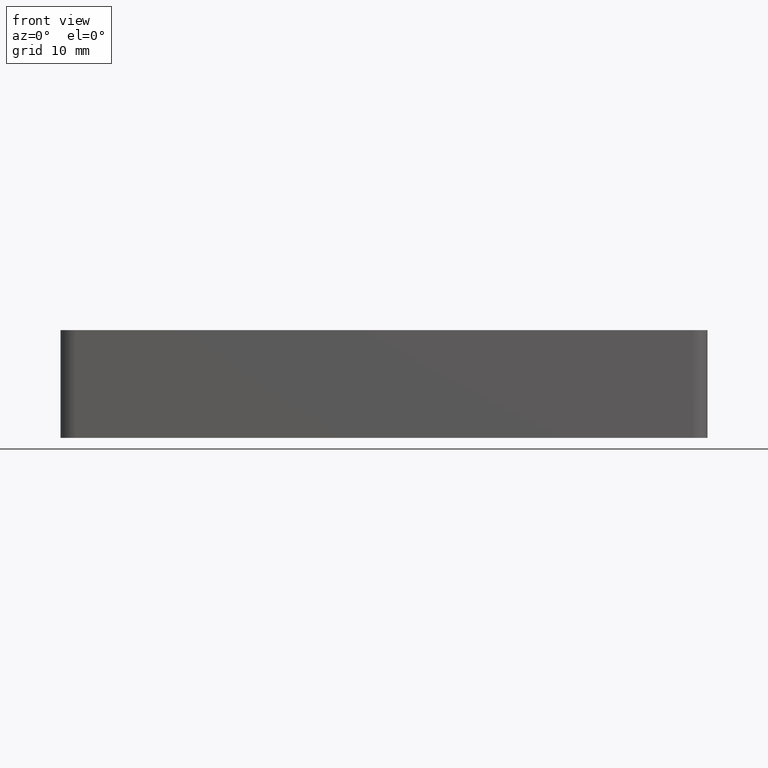
[diagram: clean part render]
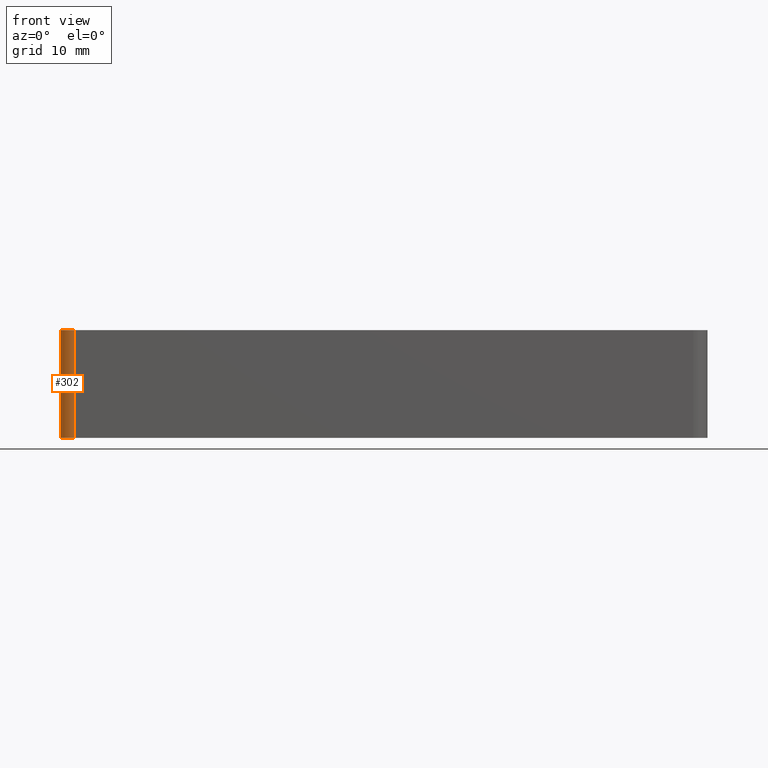
[diagram: same view with one face highlighted and labeled with its STEP entity id]
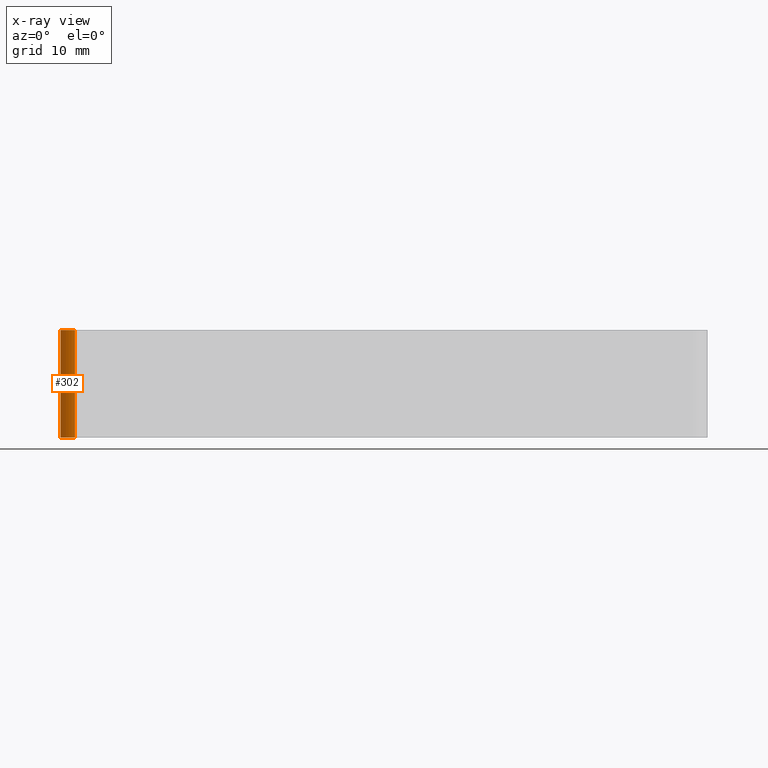
[diagram: x-ray of the same camera — body ghosted, the highlighted face saturated]
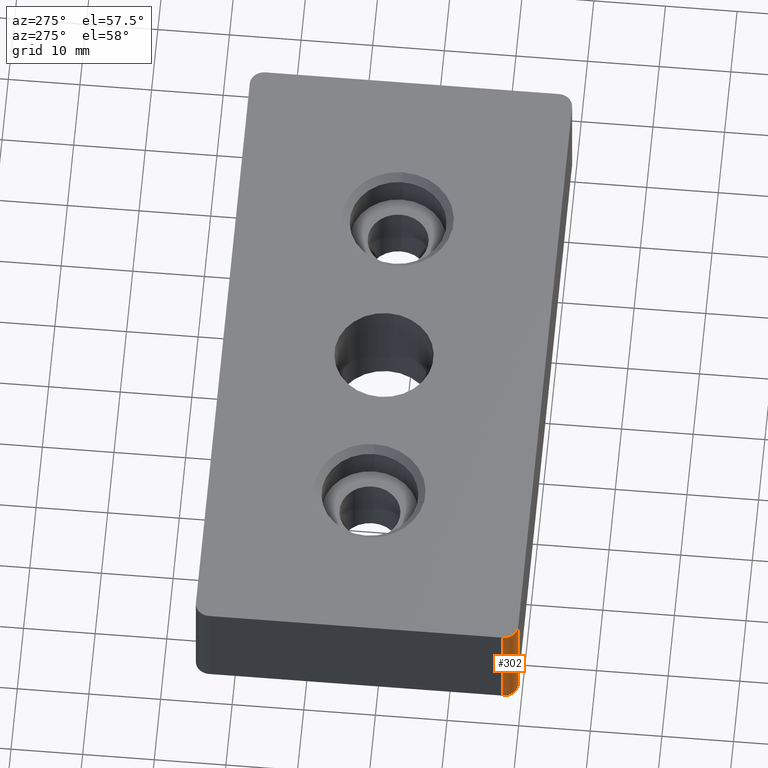
[diagram: same view with one face highlighted and labeled with its STEP entity id]
A machine part, front view. The second image highlights one B-rep face of the part: STEP entity #302.
The next image is the same camera in x-ray: the body ghosted, the highlighted face saturated — about 0% of this face is hidden behind the body in this view.
A second angle (auxiliary view) of the same face is appended — the face is thin or edge-on in the first view.
In plain terms, the highlighted cylindrical surface (edge-blend (fillet) strip) has radius 2 mm, axis along (0, 0, 1).
Its self-contained STEP definition (entity closure, byte-faithful):
#21=CYLINDRICAL_SURFACE('',#341,2.);
#38=LINE('',#518,#54);
#39=LINE('',#519,#55);
#54=VECTOR('',#428,15.);
#55=VECTOR('',#429,15.);
#91=FACE_OUTER_BOUND('',#121,.T.);
#121=EDGE_LOOP('',(#268,#269,#270,#271));
#137=CIRCLE('',#318,2.);
#145=CIRCLE('',#333,2.);
#160=VERTEX_POINT('',#464);
#161=VERTEX_POINT('',#466);
#171=VERTEX_POINT('',#496);
#172=VERTEX_POINT('',#498);
#188=EDGE_CURVE('',#161,#160,#137,.T.);
#202=EDGE_CURVE('',#172,#171,#145,.T.);
#212=EDGE_CURVE('',#160,#172,#38,.T.);
#213=EDGE_CURVE('',#171,#161,#39,.T.);
#268=ORIENTED_EDGE('',*,*,#188,.T.);
#269=ORIENTED_EDGE('',*,*,#212,.T.);
#270=ORIENTED_EDGE('',*,*,#202,.T.);
#271=ORIENTED_EDGE('',*,*,#213,.T.);
#302=ADVANCED_FACE('',(#91),#21,.T.);
#318=AXIS2_PLACEMENT_3D('',#467,#369,#370);
#333=AXIS2_PLACEMENT_3D('',#499,#405,#406);
#341=AXIS2_PLACEMENT_3D('',#517,#426,#427);
#369=DIRECTION('center_axis',(0.,0.,-1.));
#370=DIRECTION('ref_axis',(-0.707106781186548,-0.707106781186548,0.));
#405=DIRECTION('center_axis',(0.,0.,1.));
#406=DIRECTION('ref_axis',(-0.707106781186548,-0.707106781186548,0.));
#426=DIRECTION('center_axis',(0.,0.,1.));
#427=DIRECTION('ref_axis',(-0.707106781186548,-0.707106781186548,0.));
#428=DIRECTION('',(0.,0.,-1.));
#429=DIRECTION('',(0.,0.,1.));
#464=CARTESIAN_POINT('',(-16.2175166014586,-7.43214636972644,15.));
#466=CARTESIAN_POINT('',(-14.2175166014585,-9.43214636972644,15.));
#467=CARTESIAN_POINT('Origin',(-14.2175166014586,-7.43214636972644,15.));
#496=CARTESIAN_POINT('',(-14.2175166014585,-9.43214636972644,0.));
#498=CARTESIAN_POINT('',(-16.2175166014586,-7.43214636972644,0.));
#499=CARTESIAN_POINT('Origin',(-14.2175166014586,-7.43214636972644,0.));
#517=CARTESIAN_POINT('Origin',(-14.2175166014586,-7.43214636972644,0.));
#518=CARTESIAN_POINT('',(-16.2175166014586,-7.43214636972644,15.));
#519=CARTESIAN_POINT('',(-14.2175166014586,-9.43214636972644,0.));